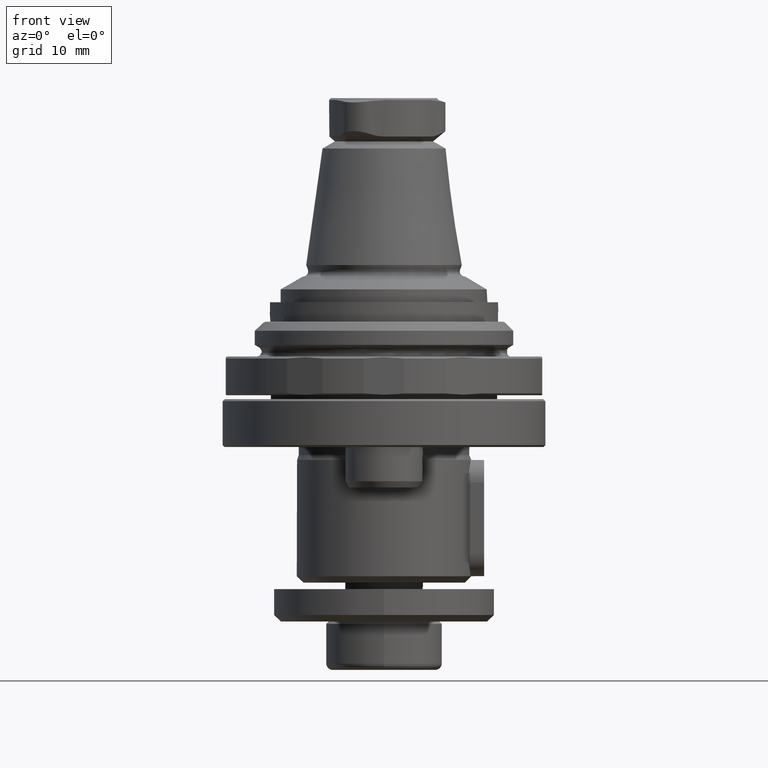
[diagram: clean part render]
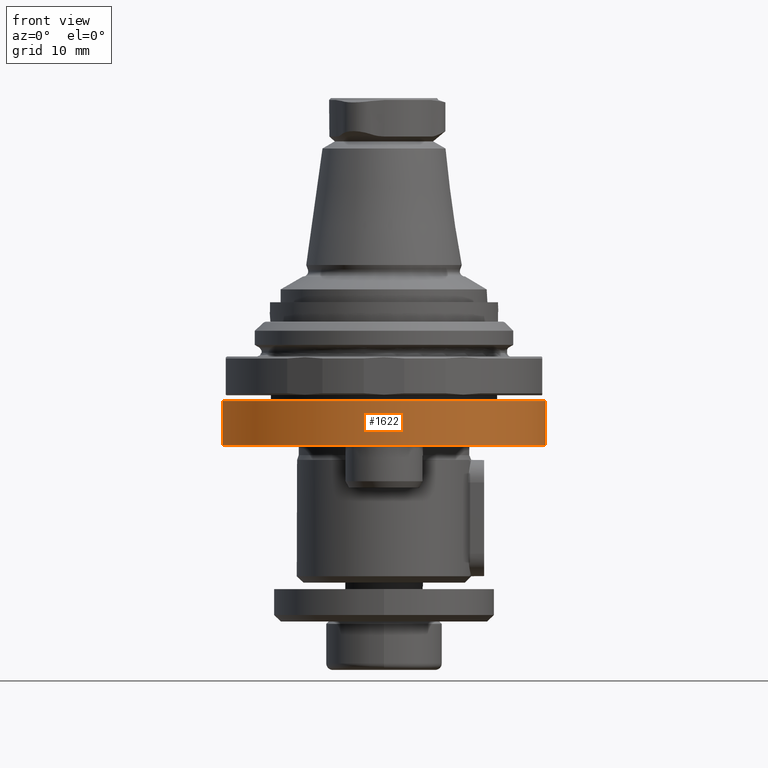
[diagram: same view with one face highlighted and labeled with its STEP entity id]
A machine part, front view. The second image highlights one B-rep face of the part: STEP entity #1622.
In plain terms, the highlighted cylindrical surface (bore or boss wall) has radius 25 mm, axis along (0, 0, -1).
Its self-contained STEP definition (entity closure, byte-faithful):
#223=CYLINDRICAL_SURFACE('',#1766,25.);
#444=ORIENTED_EDGE('',*,*,#869,.T.);
#445=ORIENTED_EDGE('',*,*,#870,.F.);
#869=EDGE_CURVE('',#1072,#1072,#1194,.T.);
#870=EDGE_CURVE('',#1073,#1073,#1195,.T.);
#1072=VERTEX_POINT('',#2711);
#1073=VERTEX_POINT('',#2713);
#1194=CIRCLE('',#1767,25.);
#1195=CIRCLE('',#1768,25.);
#1300=EDGE_LOOP('',(#444));
#1301=EDGE_LOOP('',(#445));
#1455=FACE_BOUND('',#1300,.T.);
#1456=FACE_BOUND('',#1301,.T.);
#1622=ADVANCED_FACE('',(#1455,#1456),#223,.T.);
#1766=AXIS2_PLACEMENT_3D('',#2709,#2039,#2040);
#1767=AXIS2_PLACEMENT_3D('',#2710,#2041,#2042);
#1768=AXIS2_PLACEMENT_3D('',#2712,#2043,#2044);
#2039=DIRECTION('',(0.,0.,-1.));
#2040=DIRECTION('',(0.,1.,0.));
#2041=DIRECTION('',(0.,0.,-1.));
#2042=DIRECTION('',(0.,1.,0.));
#2043=DIRECTION('',(0.,0.,-1.));
#2044=DIRECTION('',(0.,1.,0.));
#2709=CARTESIAN_POINT('',(0.,0.,-50.0062177826491));
#2710=CARTESIAN_POINT('',(0.,0.,-7.9));
#2711=CARTESIAN_POINT('',(0.,25.,-7.9));
#2712=CARTESIAN_POINT('',(0.,0.,-14.7));
#2713=CARTESIAN_POINT('',(0.,25.,-14.7));